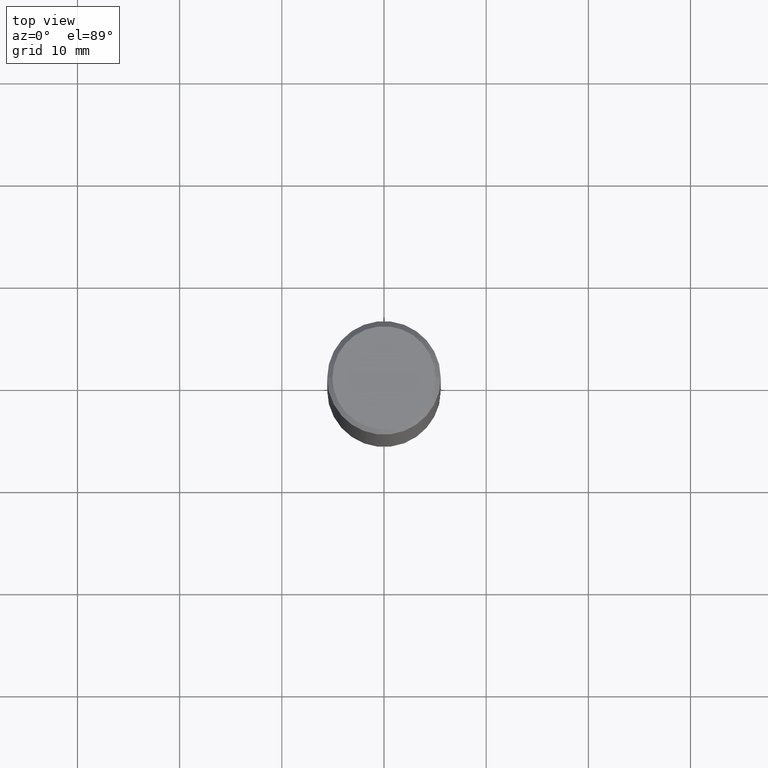
[diagram: clean part render]
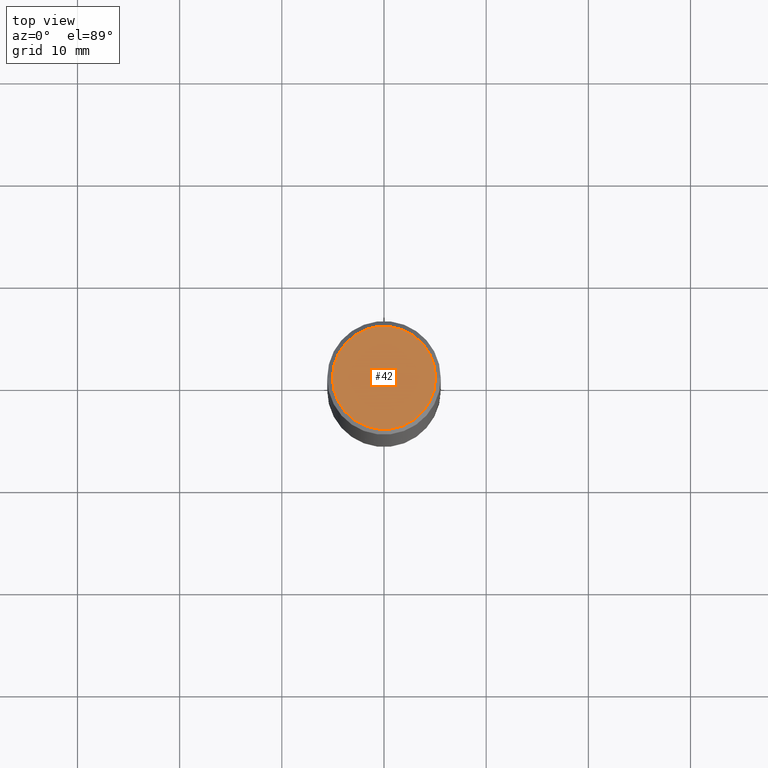
[diagram: same view with one face highlighted and labeled with its STEP entity id]
A machine part, top view. The second image highlights one B-rep face of the part: STEP entity #42.
In plain terms, the highlighted planar face has unit normal (0, -0, -1).
Its self-contained STEP definition (entity closure, byte-faithful):
#1 = EDGE_CURVE ( 'NONE', #198, #201, #238, .T. ) ;
#42 = ADVANCED_FACE ( 'NONE', ( #366 ), #208, .F. ) ;
#49 = CARTESIAN_POINT ( 'NONE',  ( -0.1987499999999997879, 1.422778645578575107E-15, -9.827974342635073886E-30 ) ) ;
#84 = CARTESIAN_POINT ( 'NONE',  ( 0.000000000000000000, 0.000000000000000000, 0.000000000000000000 ) ) ;
#100 = AXIS2_PLACEMENT_3D ( 'NONE', #140, #320, #113 ) ;
#103 = EDGE_LOOP ( 'NONE', ( #245, #282 ) ) ;
#113 = DIRECTION ( 'NONE',  ( 1.000000000000000000, -6.982962677686266711E-15, 4.876176775795936353E-29 ) ) ;
#119 = AXIS2_PLACEMENT_3D ( 'NONE', #84, #147, #277 ) ;
#130 = DIRECTION ( 'NONE',  ( 2.438088387897960049E-29, -3.491481338843145188E-15, -1.000000000000000000 ) ) ;
#140 = CARTESIAN_POINT ( 'NONE',  ( 0.000000000000000000, 0.000000000000000000, 0.000000000000000000 ) ) ;
#147 = DIRECTION ( 'NONE',  ( -2.445468806185136597E-29, 3.491481338843145583E-15, 1.000000000000000000 ) ) ;
#198 = VERTEX_POINT ( 'NONE', #255 ) ;
#201 = VERTEX_POINT ( 'NONE', #49 ) ;
#208 = PLANE ( 'NONE',  #363 ) ;
#236 = CARTESIAN_POINT ( 'NONE',  ( 1.387863832190143852E-15, 0.1987499999999997879, -6.939319160950744899E-16 ) ) ;
#238 = CIRCLE ( 'NONE', #119, 0.1987499999999997879 ) ;
#245 = ORIENTED_EDGE ( 'NONE', *, *, #341, .T. ) ;
#255 = CARTESIAN_POINT ( 'NONE',  ( 0.1987499999999997879, -1.467043770423237466E-15, 9.982525199991775287E-30 ) ) ;
#262 = DIRECTION ( 'NONE',  ( -1.000000000000000000, 6.982962677686265922E-15, -4.876176775795935793E-29 ) ) ;
#270 = CIRCLE ( 'NONE', #100, 0.1987499999999997879 ) ;
#277 = DIRECTION ( 'NONE',  ( 1.000000000000000000, -6.982962677686266711E-15, 4.876176775795936353E-29 ) ) ;
#282 = ORIENTED_EDGE ( 'NONE', *, *, #1, .T. ) ;
#320 = DIRECTION ( 'NONE',  ( -2.445468806185136597E-29, 3.491481338843145583E-15, 1.000000000000000000 ) ) ;
#341 = EDGE_CURVE ( 'NONE', #201, #198, #270, .T. ) ;
#363 = AXIS2_PLACEMENT_3D ( 'NONE', #236, #130, #262 ) ;
#366 = FACE_OUTER_BOUND ( 'NONE', #103, .T. ) ;